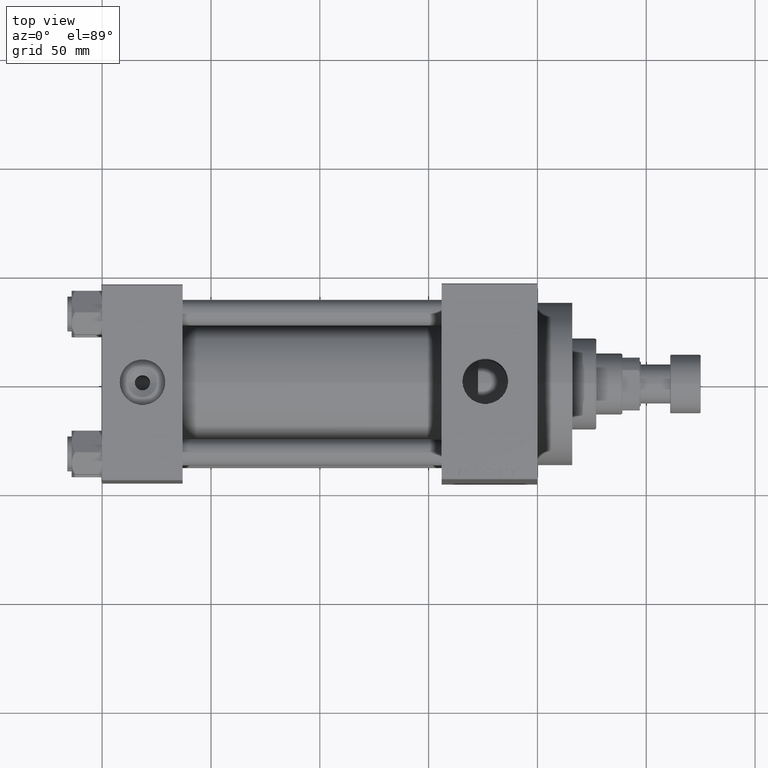
[diagram: clean part render]
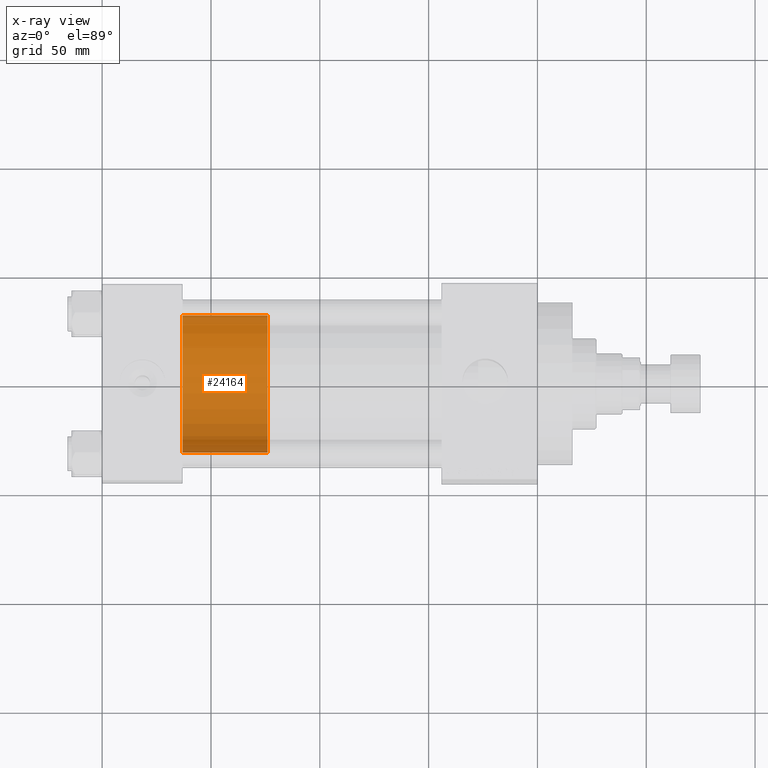
[diagram: x-ray — body ghosted, one internal face saturated and labeled with its STEP entity id]
A machine part, top view, then the same camera in x-ray: the body is ghosted and one INTERNAL B-rep face — a face not visible from any outside direction — is saturated and labeled: STEP entity #24164.
In plain terms, the highlighted cylindrical surface (partial cylindrical patch) has radius 31.5 mm, axis along (-1, 0, 0).
Its self-contained STEP definition (entity closure, byte-faithful):
#151 = CIRCLE ( 'NONE', #24782, 31.50000000000000000 ) ;
#1041 = VERTEX_POINT ( 'NONE', #45161 ) ;
#1112 = ORIENTED_EDGE ( 'NONE', *, *, #47295, .F. ) ;
#3531 = DIRECTION ( 'NONE',  ( -0.000000000000000000, -0.000000000000000000, -1.000000000000000000 ) ) ;
#3657 = ORIENTED_EDGE ( 'NONE', *, *, #15374, .T. ) ;
#3932 = VECTOR ( 'NONE', #41903, 1000.000000000000000 ) ;
#7308 = DIRECTION ( 'NONE',  ( 1.000000000000000000, 0.000000000000000000, 0.000000000000000000 ) ) ;
#8269 = DIRECTION ( 'NONE',  ( 1.000000000000000000, 0.000000000000000000, 0.000000000000000000 ) ) ;
#8377 = LINE ( 'NONE', #15841, #3932 ) ;
#8518 = CARTESIAN_POINT ( 'NONE',  ( 0.000000000000000000, 0.000000000000000000, 0.000000000000000000 ) ) ;
#11617 = DIRECTION ( 'NONE',  ( 0.000000000000000000, 0.000000000000000000, 1.000000000000000000 ) ) ;
#11836 = ORIENTED_EDGE ( 'NONE', *, *, #23348, .T. ) ;
#14698 = CARTESIAN_POINT ( 'NONE',  ( -31.50000000000000000, 0.000000000000000000, 39.00000000000000000 ) ) ;
#15374 = EDGE_CURVE ( 'NONE', #1041, #21933, #21869, .T. ) ;
#15841 = CARTESIAN_POINT ( 'NONE',  ( -31.50000000000000000, 0.000000000000000000, 39.00000000000000000 ) ) ;
#18153 = CARTESIAN_POINT ( 'NONE',  ( 31.50000000000000000, 3.857637417314162689E-15, 0.000000000000000000 ) ) ;
#18492 = FACE_OUTER_BOUND ( 'NONE', #25155, .T. ) ;
#21065 = CIRCLE ( 'NONE', #28016, 31.50000000000000000 ) ;
#21595 = ORIENTED_EDGE ( 'NONE', *, *, #41800, .F. ) ;
#21869 = LINE ( 'NONE', #29102, #43155 ) ;
#21933 = VERTEX_POINT ( 'NONE', #18153 ) ;
#23348 = EDGE_CURVE ( 'NONE', #21933, #25628, #21065, .T. ) ;
#24164 = ADVANCED_FACE ( 'NONE', ( #18492 ), #25265, .T. ) ;
#24782 = AXIS2_PLACEMENT_3D ( 'NONE', #44654, #11617, #7308 ) ;
#25155 = EDGE_LOOP ( 'NONE', ( #1112, #3657, #11836, #21595 ) ) ;
#25265 = CYLINDRICAL_SURFACE ( 'NONE', #35741, 31.50000000000000000 ) ;
#25496 = CARTESIAN_POINT ( 'NONE',  ( 0.000000000000000000, 0.000000000000000000, 39.00000000000000000 ) ) ;
#25628 = VERTEX_POINT ( 'NONE', #28136 ) ;
#28016 = AXIS2_PLACEMENT_3D ( 'NONE', #8518, #30960, #8269 ) ;
#28136 = CARTESIAN_POINT ( 'NONE',  ( -31.50000000000000000, 0.000000000000000000, 0.000000000000000000 ) ) ;
#29102 = CARTESIAN_POINT ( 'NONE',  ( 31.50000000000000000, 3.857637417314162689E-15, 39.00000000000000000 ) ) ;
#30960 = DIRECTION ( 'NONE',  ( 0.000000000000000000, 0.000000000000000000, 1.000000000000000000 ) ) ;
#32834 = VERTEX_POINT ( 'NONE', #14698 ) ;
#35741 = AXIS2_PLACEMENT_3D ( 'NONE', #25496, #44049, #40211 ) ;
#40211 = DIRECTION ( 'NONE',  ( -1.000000000000000000, 0.000000000000000000, 0.000000000000000000 ) ) ;
#41800 = EDGE_CURVE ( 'NONE', #32834, #25628, #8377, .T. ) ;
#41903 = DIRECTION ( 'NONE',  ( -0.000000000000000000, -0.000000000000000000, -1.000000000000000000 ) ) ;
#43155 = VECTOR ( 'NONE', #3531, 1000.000000000000000 ) ;
#44049 = DIRECTION ( 'NONE',  ( -0.000000000000000000, -0.000000000000000000, -1.000000000000000000 ) ) ;
#44654 = CARTESIAN_POINT ( 'NONE',  ( 0.000000000000000000, 0.000000000000000000, 39.00000000000000000 ) ) ;
#45161 = CARTESIAN_POINT ( 'NONE',  ( 31.50000000000000000, 3.857637417314162689E-15, 39.00000000000000000 ) ) ;
#47295 = EDGE_CURVE ( 'NONE', #1041, #32834, #151, .T. ) ;